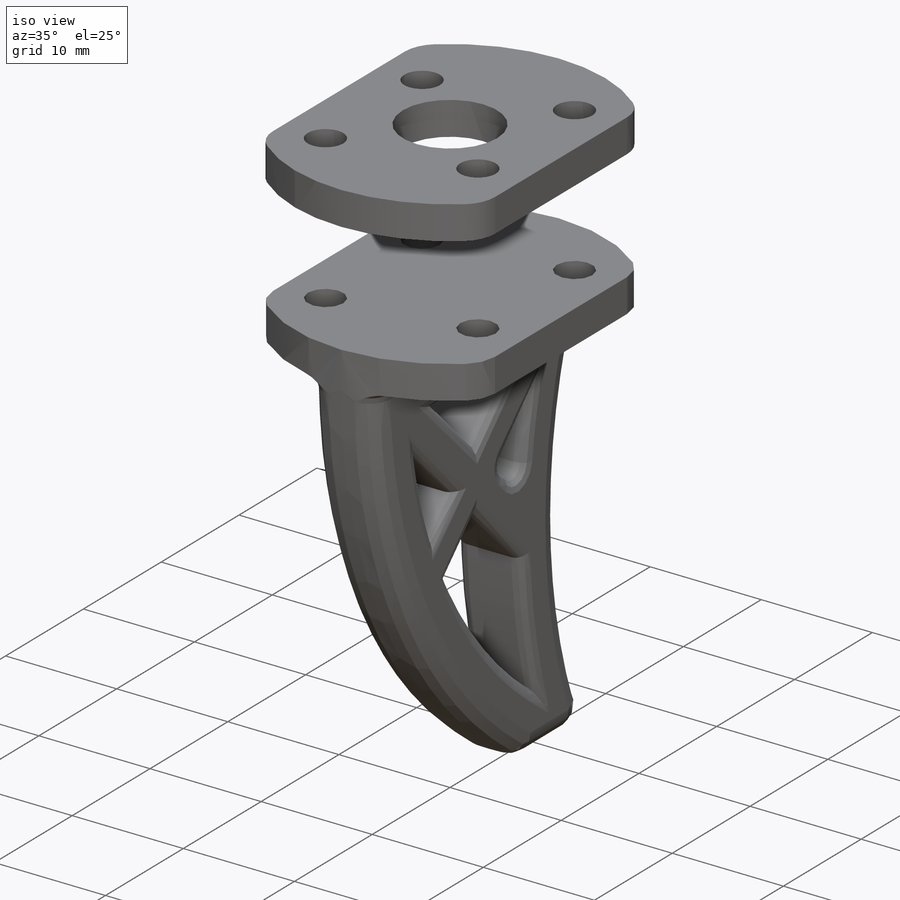
[diagram: iso view]
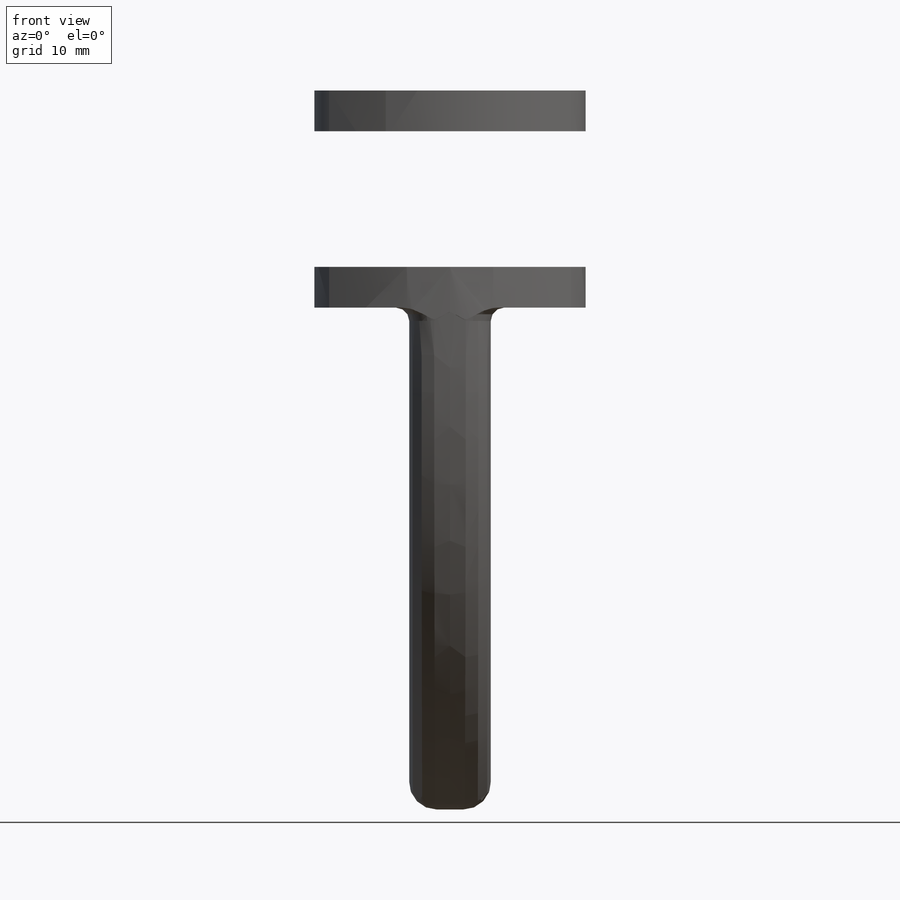
[diagram: front view]
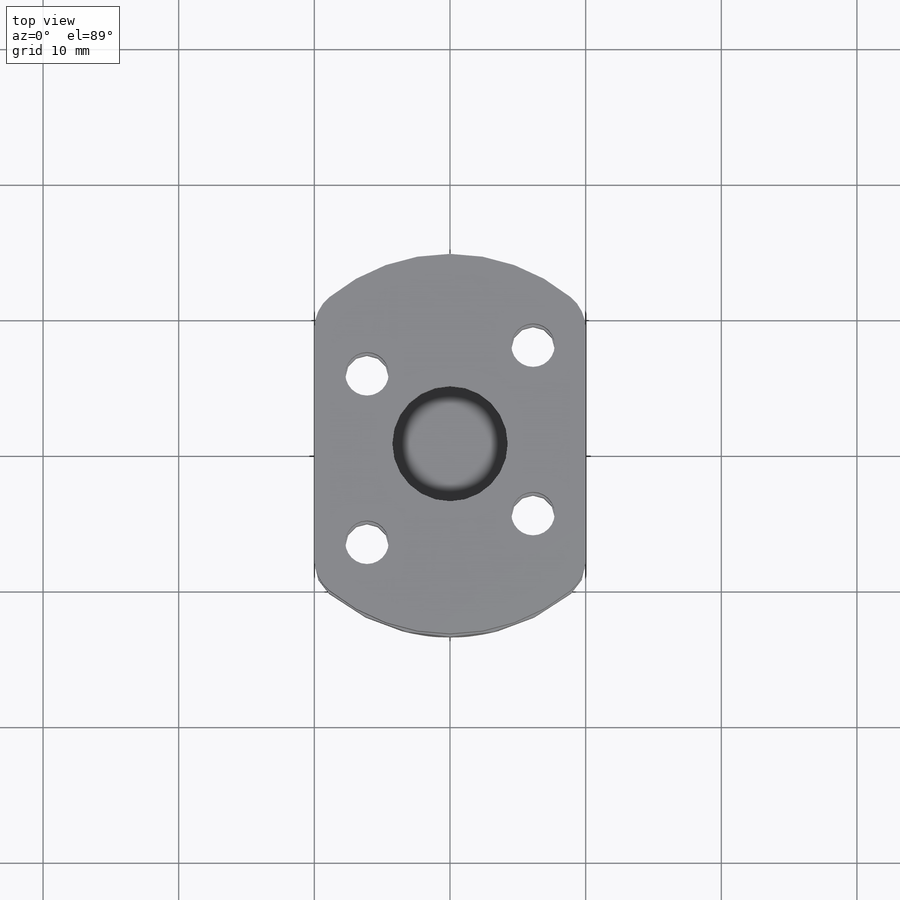
[diagram: top view]
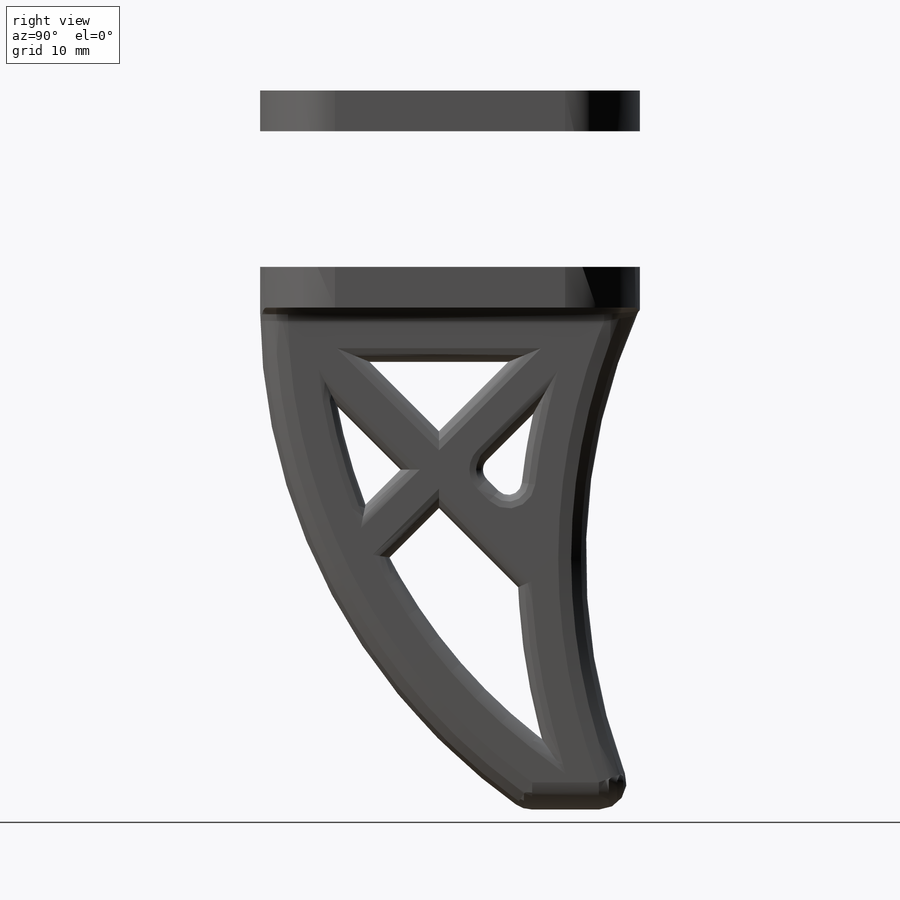
[diagram: right view]
SOLIDWORKS PART (.sldprt)
format: sldprt  version: not decoded by parser v0  size: 1,416,704 bytes
history: native  units: mm
features: sketch x9, fillet x4, plane x4, extrude x2, material x1, cut_extrude x1 (+13 scaffold rows collapsed)
feature tree (34):
  scaffold x13  (default folders/planes/origin — collapsed)
  material  "Material <not specified>"
  sketch  "Sketch1"  dims[c1.D1=28.0mm c1.D2=8.5mm c1.D4=3.2mm c1.D3=~13.028961mm c2.D3=45.0deg c2.D5=16.0mm c2.D6=19.0mm c3.D3=20.0mm]
  extrude  "Boss-Extrude1"  Depth=3mm
  fillet  "Fillet1"  Radius=3mm
  plane  "Plane1"  Offset=10mm
  sketch  "Sketch3"  dims[D1=0.0mm]
  plane  "Plane2"  Offset=40mm
  sketch  "Sketch5"
  extrude  "Boss-Extrude4"  Depth=3mm
  plane  "Plane3"  Offset=7mm
  sketch  "Sketch6"  dims[D1=45.0mm D2=3.0mm]
  plane  "Plane4"  Offset=7mm
  sketch  "Sketch7"
  sketch  "Sketch8"
  sketch  "Sketch9"
  fillet  "Fillet7"  Radius=2mm
  fillet  "Fillet8"  Radius=1mm
  sketch  "Sketch10"  dims[D1=3.0mm]
  cut_extrude  "Cut-Extrude1"  Depth=3mm
  sketch  "Sketch11"  dims[c1.D1=~17.506292mm c2.D1=45.0deg c2.D2=~42.757919mm c3.D2=45.0deg c3.D3=23.0mm c3.D4=22.0mm c3.D5=4.0mm c3.D6=10.0mm c3.D7=5.0mm]
  fillet  "Fillet9"  Radius=1mm
decode coverage: 12 of 16 modeling features carry decoded parameters
note: ~ marks probable driven/reference dimensions
note: suppression state not decoded; provenance and decode notes live in map.json
